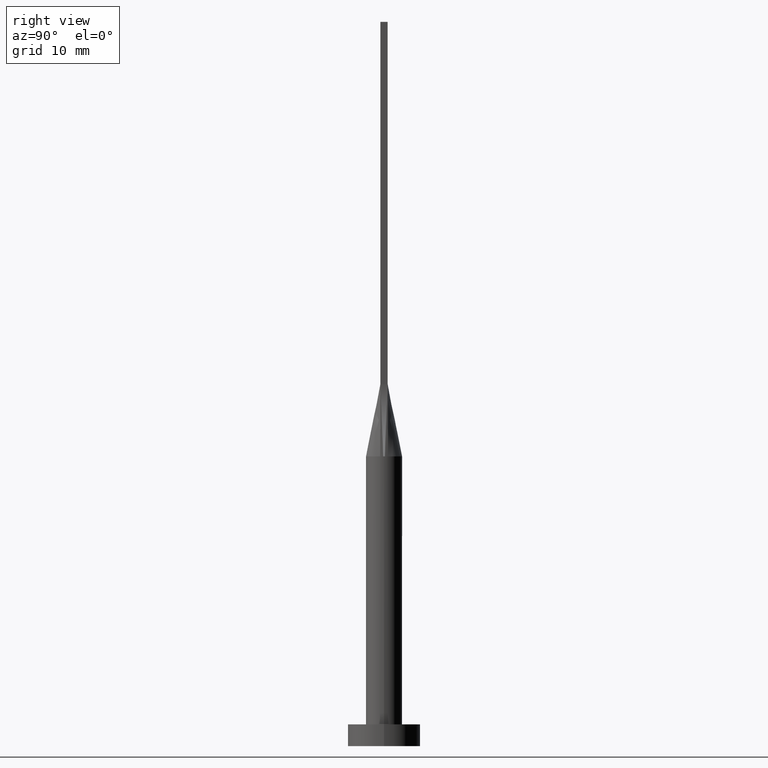
[diagram: clean part render]
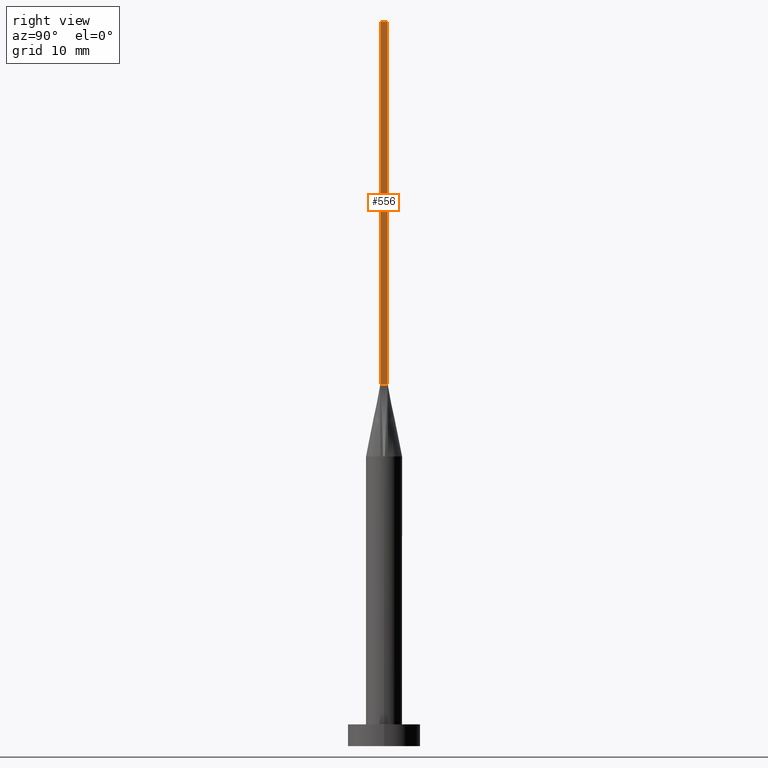
[diagram: same view with one face highlighted and labeled with its STEP entity id]
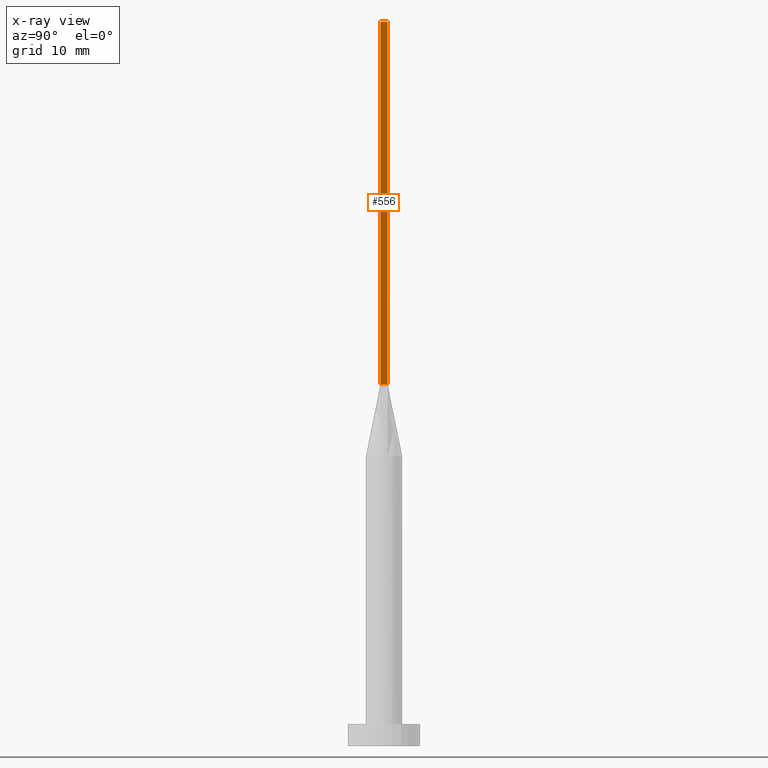
[diagram: x-ray of the same camera — body ghosted, the highlighted face saturated]
A machine part, right view. The second image highlights one B-rep face of the part: STEP entity #556.
The next image is the same camera in x-ray: the body ghosted, the highlighted face saturated — about 0% of this face is hidden behind the body in this view.
In plain terms, the highlighted planar face has unit normal (-1, -0, 0).
Its self-contained STEP definition (entity closure, byte-faithful):
#23 = EDGE_CURVE ( 'NONE', #383, #217, #360, .T. ) ;
#32 = VECTOR ( 'NONE', #51, 1000.000000000000000 ) ;
#41 = CARTESIAN_POINT ( 'NONE',  ( 2.250000000000000000, -0.4999999999999997780, 100.0000000000000000 ) ) ;
#47 = EDGE_CURVE ( 'NONE', #407, #217, #193, .T. ) ;
#51 = DIRECTION ( 'NONE',  ( -0.000000000000000000, -0.000000000000000000, -1.000000000000000000 ) ) ;
#66 = ORIENTED_EDGE ( 'NONE', *, *, #423, .F. ) ;
#67 = CARTESIAN_POINT ( 'NONE',  ( 2.250000000000000000, -0.4999999999999997780, 100.0000000000000000 ) ) ;
#89 = VECTOR ( 'NONE', #452, 1000.000000000000000 ) ;
#108 = CARTESIAN_POINT ( 'NONE',  ( 2.249999999999999556, 0.5000000000000002220, 50.00000000000000000 ) ) ;
#140 = LINE ( 'NONE', #321, #32 ) ;
#176 = CARTESIAN_POINT ( 'NONE',  ( 2.249999999999999556, 0.5000000000000002220, 100.0000000000000000 ) ) ;
#185 = DIRECTION ( 'NONE',  ( -4.336808689942017736E-16, 1.000000000000000000, -0.000000000000000000 ) ) ;
#187 = LINE ( 'NONE', #41, #303 ) ;
#192 = ORIENTED_EDGE ( 'NONE', *, *, #293, .T. ) ;
#193 = LINE ( 'NONE', #108, #470 ) ;
#200 = FACE_OUTER_BOUND ( 'NONE', #524, .T. ) ;
#217 = VERTEX_POINT ( 'NONE', #499 ) ;
#220 = CARTESIAN_POINT ( 'NONE',  ( 2.249999999999999556, 0.5000000000000002220, 100.0000000000000000 ) ) ;
#230 = CARTESIAN_POINT ( 'NONE',  ( 2.250000000000000000, -0.4999999999999997780, 50.00000000000000000 ) ) ;
#292 = DIRECTION ( 'NONE',  ( 4.336808689942017736E-16, -1.000000000000000000, 0.000000000000000000 ) ) ;
#293 = EDGE_CURVE ( 'NONE', #475, #407, #140, .T. ) ;
#303 = VECTOR ( 'NONE', #543, 1000.000000000000000 ) ;
#321 = CARTESIAN_POINT ( 'NONE',  ( 2.250000000000000000, -0.4999999999999997780, 100.0000000000000000 ) ) ;
#360 = LINE ( 'NONE', #220, #89 ) ;
#378 = PLANE ( 'NONE',  #466 ) ;
#383 = VERTEX_POINT ( 'NONE', #176 ) ;
#407 = VERTEX_POINT ( 'NONE', #230 ) ;
#423 = EDGE_CURVE ( 'NONE', #475, #383, #187, .T. ) ;
#428 = ORIENTED_EDGE ( 'NONE', *, *, #23, .F. ) ;
#452 = DIRECTION ( 'NONE',  ( -0.000000000000000000, -0.000000000000000000, -1.000000000000000000 ) ) ;
#466 = AXIS2_PLACEMENT_3D ( 'NONE', #67, #558, #292 ) ;
#470 = VECTOR ( 'NONE', #185, 1000.000000000000000 ) ;
#475 = VERTEX_POINT ( 'NONE', #511 ) ;
#499 = CARTESIAN_POINT ( 'NONE',  ( 2.249999999999999556, 0.5000000000000002220, 50.00000000000000000 ) ) ;
#511 = CARTESIAN_POINT ( 'NONE',  ( 2.250000000000000000, -0.4999999999999997780, 100.0000000000000000 ) ) ;
#516 = ORIENTED_EDGE ( 'NONE', *, *, #47, .T. ) ;
#524 = EDGE_LOOP ( 'NONE', ( #516, #428, #66, #192 ) ) ;
#543 = DIRECTION ( 'NONE',  ( -4.336808689942017736E-16, 1.000000000000000000, 0.000000000000000000 ) ) ;
#556 = ADVANCED_FACE ( 'NONE', ( #200 ), #378, .F. ) ;
#558 = DIRECTION ( 'NONE',  ( -1.000000000000000000, -4.336808689942017736E-16, 0.000000000000000000 ) ) ;